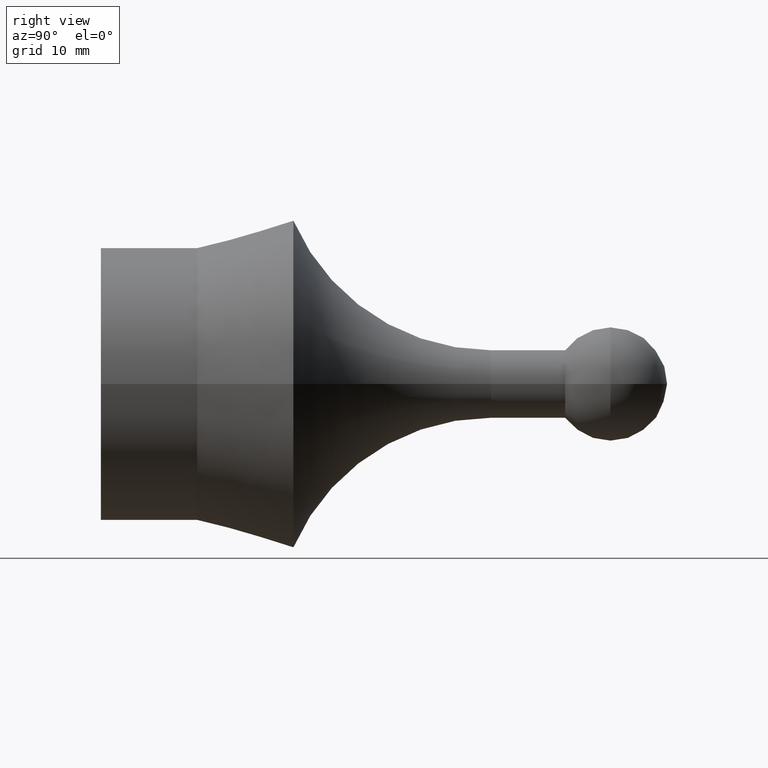
[diagram: clean part render]
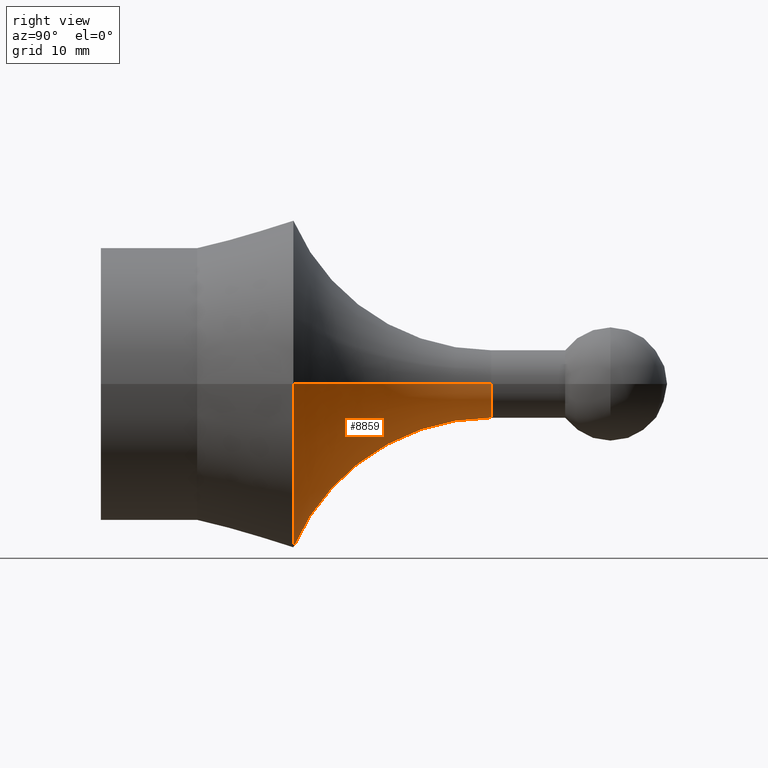
[diagram: same view with one face highlighted and labeled with its STEP entity id]
A machine part, right view. The second image highlights one B-rep face of the part: STEP entity #8859.
In plain terms, the highlighted toroidal blend (fillet) surface has major radius 22 mm and minor (blend) radius 19 mm.
Its self-contained STEP definition (entity closure, byte-faithful):
#558 = DIRECTION ( 'NONE',  ( 1.000000000000000000, 0.000000000000000000, -1.224646799147353207E-16 ) ) ;
#656 = DIRECTION ( 'NONE',  ( -6.123233995736766344E-18, -1.000000000000000000, -0.000000000000000000 ) ) ;
#1477 = CARTESIAN_POINT ( 'NONE',  ( 14.49999999999998757, 17.00000000000001421, 0.000000000000000000 ) ) ;
#1624 = ORIENTED_EDGE ( 'NONE', *, *, #1707, .F. ) ;
#1643 = CARTESIAN_POINT ( 'NONE',  ( 22.00000000000000355, 34.45709025009610116, 0.000000000000000000 ) ) ;
#1707 = EDGE_CURVE ( 'NONE', #4113, #9259, #10950, .T. ) ;
#1827 = AXIS2_PLACEMENT_3D ( 'NONE', #4782, #2467, #5439 ) ;
#1940 = AXIS2_PLACEMENT_3D ( 'NONE', #2280, #656, #5975 ) ;
#2196 = ORIENTED_EDGE ( 'NONE', *, *, #4544, .T. ) ;
#2280 = CARTESIAN_POINT ( 'NONE',  ( 0.000000000000000000, 34.45709025009610116, 0.000000000000000000 ) ) ;
#2454 = DIRECTION ( 'NONE',  ( 1.000000000000000000, 0.000000000000000000, 0.000000000000000000 ) ) ;
#2467 = DIRECTION ( 'NONE',  ( -6.123233995736766344E-18, -1.000000000000000000, -0.000000000000000000 ) ) ;
#2665 = EDGE_LOOP ( 'NONE', ( #1624, #4036, #2196, #10744 ) ) ;
#3335 = CIRCLE ( 'NONE', #8417, 19.00000000000000000 ) ;
#3520 = CARTESIAN_POINT ( 'NONE',  ( -14.49999999999998757, 17.00000000000001421, 1.775737858763660437E-15 ) ) ;
#3948 = CIRCLE ( 'NONE', #4967, 19.00000000000000000 ) ;
#4036 = ORIENTED_EDGE ( 'NONE', *, *, #4179, .T. ) ;
#4113 = VERTEX_POINT ( 'NONE', #3520 ) ;
#4118 = CARTESIAN_POINT ( 'NONE',  ( 1.040949779275251126E-16, 17.00000000000001421, 0.000000000000000000 ) ) ;
#4179 = EDGE_CURVE ( 'NONE', #4113, #8603, #3335, .T. ) ;
#4382 = FACE_OUTER_BOUND ( 'NONE', #2665, .T. ) ;
#4544 = EDGE_CURVE ( 'NONE', #8603, #11249, #4991, .T. ) ;
#4782 = CARTESIAN_POINT ( 'NONE',  ( 2.109888264135583202E-16, 34.45709025009610116, 0.000000000000000000 ) ) ;
#4967 = AXIS2_PLACEMENT_3D ( 'NONE', #1643, #8566, #5942 ) ;
#4991 = CIRCLE ( 'NONE', #1827, 3.000000000000002665 ) ;
#5439 = DIRECTION ( 'NONE',  ( 1.000000000000000000, 0.000000000000000000, 0.000000000000000000 ) ) ;
#5564 = CARTESIAN_POINT ( 'NONE',  ( -3.000000000000002665, 34.45709025009610116, 1.071565949253933138E-15 ) ) ;
#5942 = DIRECTION ( 'NONE',  ( -1.000000000000000000, 0.000000000000000000, 0.000000000000000000 ) ) ;
#5975 = DIRECTION ( 'NONE',  ( 1.000000000000000000, -6.123233995736765574E-18, 0.000000000000000000 ) ) ;
#6151 = AXIS2_PLACEMENT_3D ( 'NONE', #4118, #9355, #2454 ) ;
#7586 = CARTESIAN_POINT ( 'NONE',  ( 3.000000000000002665, 34.45709025009610116, 0.000000000000000000 ) ) ;
#7614 = CARTESIAN_POINT ( 'NONE',  ( -22.00000000000000355, 34.45709025009610116, 2.694222958124177204E-15 ) ) ;
#8417 = AXIS2_PLACEMENT_3D ( 'NONE', #7614, #11127, #558 ) ;
#8566 = DIRECTION ( 'NONE',  ( 0.000000000000000000, 0.000000000000000000, -1.000000000000000000 ) ) ;
#8603 = VERTEX_POINT ( 'NONE', #5564 ) ;
#8859 = ADVANCED_FACE ( 'NONE', ( #4382 ), #10618, .F. ) ;
#8865 = EDGE_CURVE ( 'NONE', #9259, #11249, #3948, .T. ) ;
#9259 = VERTEX_POINT ( 'NONE', #1477 ) ;
#9355 = DIRECTION ( 'NONE',  ( -6.123233995736766344E-18, -1.000000000000000000, -0.000000000000000000 ) ) ;
#10618 = TOROIDAL_SURFACE ( 'NONE', #1940, 22.00000000000000355, 19.00000000000000000 ) ;
#10744 = ORIENTED_EDGE ( 'NONE', *, *, #8865, .F. ) ;
#10950 = CIRCLE ( 'NONE', #6151, 14.49999999999998579 ) ;
#11127 = DIRECTION ( 'NONE',  ( 1.224646799147353207E-16, -7.498798913309288894E-34, 1.000000000000000000 ) ) ;
#11249 = VERTEX_POINT ( 'NONE', #7586 ) ;